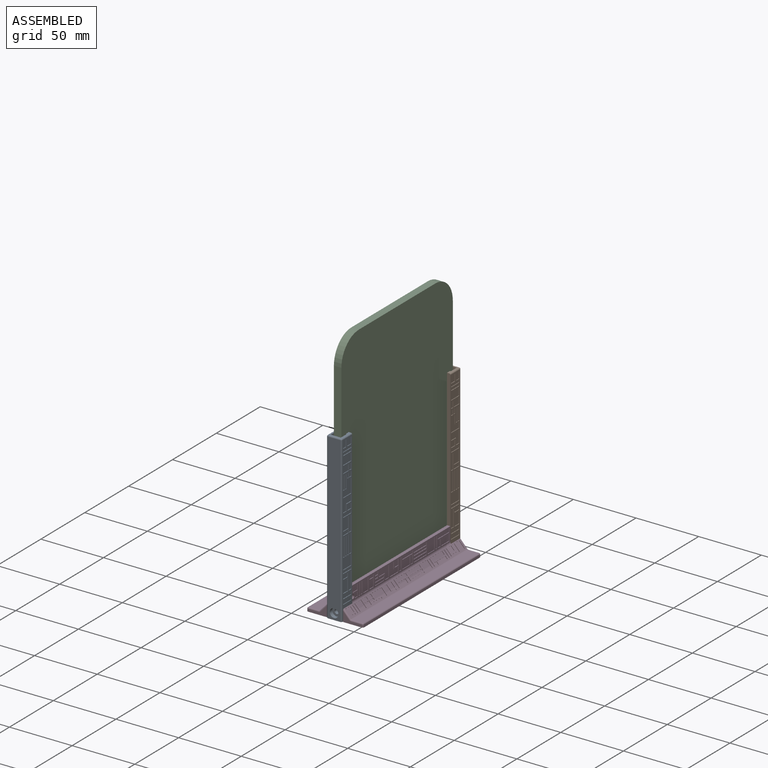
[diagram: assembled view]
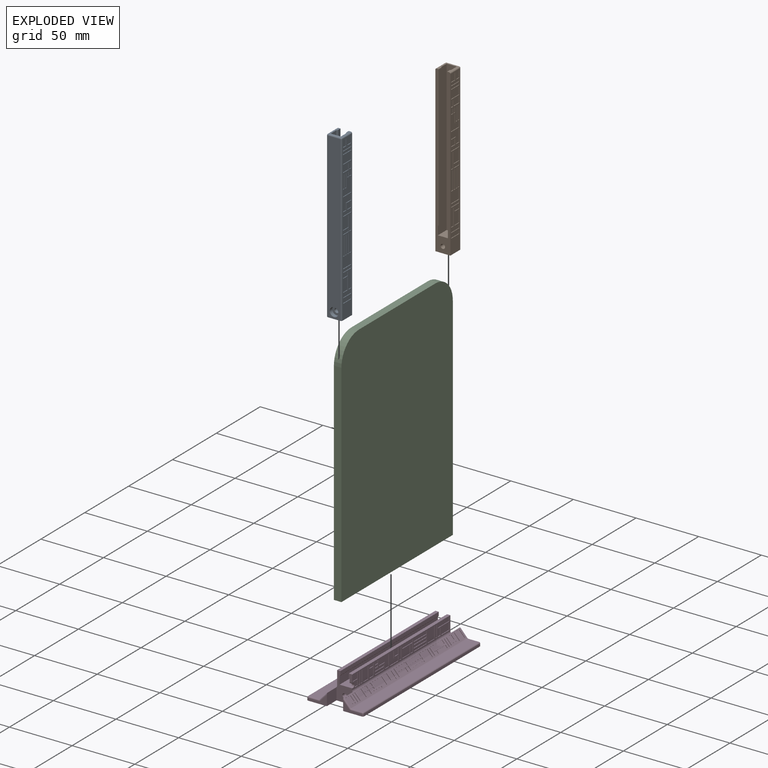
[diagram: exploded view]
GUIDED TOUR — MATED ASSEMBLY (Onshape document 5372cf0630e873745d245619, AutoMate assembly 5372cf0630e873745d245619_00c1e53bc919665ff2d2a503_a48deda3245ee287fb193565_default)

This assembly has 4 components, labeled P0..P3 below (a component is one placed occurrence of a part; the same part can appear more than once), held together by 7 mates. A mate is a constraint between two components; its type names the relative motion it leaves free:
  PLANAR — leaves sliding in the plane through the listed point (normal = the listed direction) and rotation about that normal free.
Axis/direction vectors are unit vectors and 'through' points are millimeter coordinates, both in the assembly's world frame.

MATES
  1. PLANAR "Planar 5": P0 <-> P3, direction (0.000, 1.000, 0.000) through (12.50, 0.00, 61.21) mm
  2. PLANAR "Planar 7": P3 <-> P1, direction (0.000, 0.000, -1.000) through (12.50, 56.00, 0.00) mm
  3. PLANAR "Planar 4": P0 <-> P3, direction (0.000, 0.000, -1.000) through (12.50, -5.98, 0.00) mm
  4. PLANAR "Planar 2": P3 <-> P2, direction (0.000, 0.000, 1.000) through (12.51, 55.88, 12.00) mm
  5. PLANAR "Planar 8": P1 <-> P3, direction (1.000, 0.000, 0.000) through (18.50, 117.49, 58.50) mm
  6. PLANAR "Planar 1": P3 <-> P2, direction (1.000, 0.000, 0.000) through (9.20, 56.00, 20.50) mm
  7. PLANAR "Planar 3": P0 <-> P2, direction (1.000, 0.000, 0.000) through (9.20, -1.50, 75.50) mm

ASSEMBLY ORDER
  1. P2 — the base component [order verified]
  2. P3 [order verified]
  3. P1 [order verified]
  4. P0 [order verified]
Order-tag legend:
  [order verified] — this step's position reverses a verified removal order: the component was checked to insert without passing through the ones already placed.

Of the 4 components, 3 carry the full construction recipe — the FeatureScript program that regenerates the part's solid from scratch; the rest are supplied as boundary geometry only.
Each toured component is shown spotlighted twice — in the assembled view, then in the exploded view, where a leader line traces a displaced component back to its assembled socket (saturated green if recipe-attached, orange if geometry-only; every other component desaturated gray) — followed by its recipe or geometry summary and the mates that hold it.
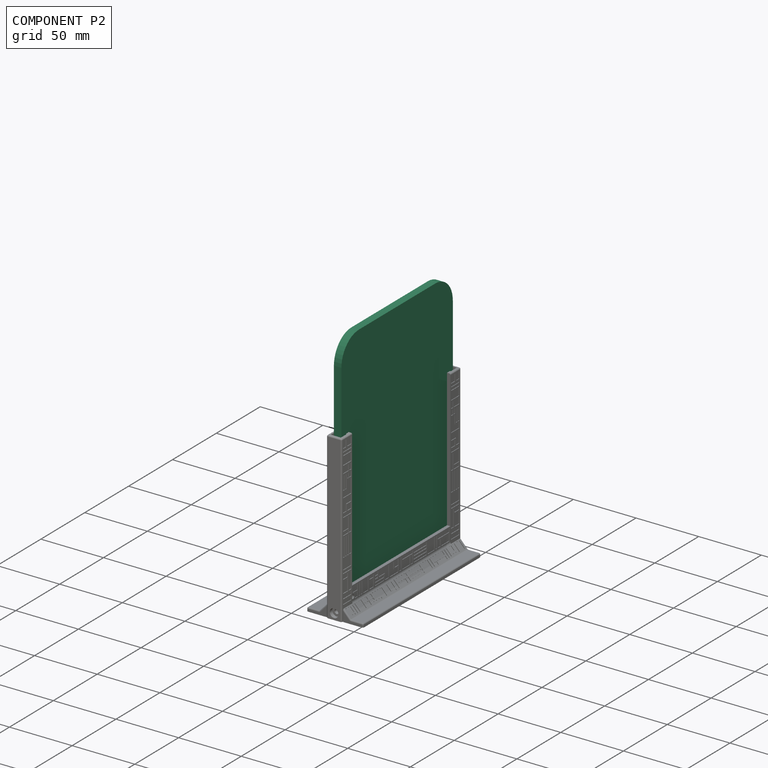
[diagram: component P2 — assembled]
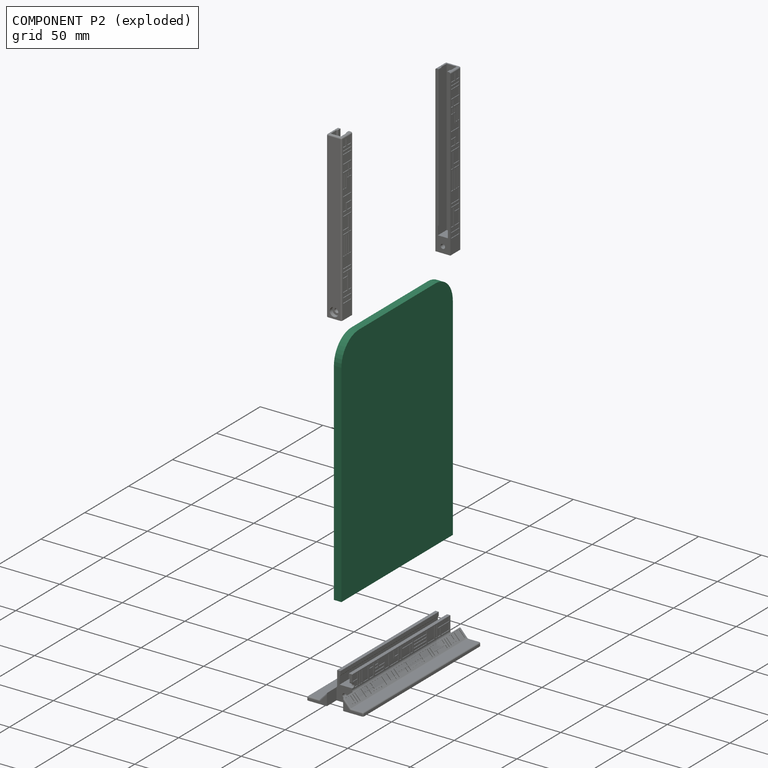
[diagram: component P2 — exploded]
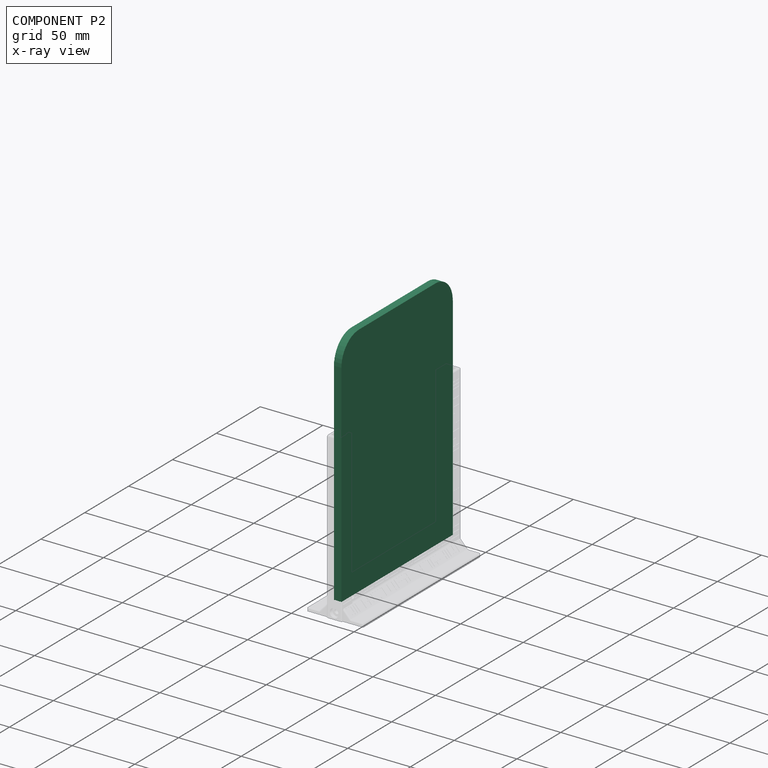
[diagram: component P2 — x-ray view]
COMPONENT P2 — recipe-attached (CADFS 00344481, mesh-verified: the recipe's output STEP matches this component's geometry to below the mesh-comparison resolution (tessellation chordal tolerance ~0.342 mm)).
Held by: PLANAR mate "Planar 2" to P3; PLANAR mate "Planar 1" to P3; PLANAR mate "Planar 3" to P0.
Construction recipe (FeatureScript — the CAD program that rebuilds this solid; sketch coordinates are in the units given by the * unit suffixes, e.g. mm):

FeatureScript 1549;
import(path : "onshape/std/geometry.fs", version : "1549.0");
import(path : "onshape/std/common.fs", version : "1549.0");
const mm = millimeter;
const VERTEX = EntityType.VERTEX;
const EDGE = EntityType.EDGE;
const FACE = EntityType.FACE;
const BODY = EntityType.BODY;
function v(x, y){return vector(x, y);}
function OD(order){return orderDisambiguation(order);}
function OSD(set){return originalSetDisambiguation(set);}
function TD(topology){return topologyDisambiguation(topology);}
function TDD(query){return trueDependencyDisambiguation(query);}
function sQuery(a, b, c) {return sketchEntityQuery(a, b, c);}

annotation { "Feature Type Name" : "Feature", "Feature Type Description" : "" }
export const myFeature = defineFeature(function(context is Context, id is Id, definition is map)
    precondition{}
    {
        {
            var Q0;
            Q0=qCreatedBy(makeId("Top.planeOp"),FACE);
            var sketch = newSketch(context, id + "F0", { "sketchPlane" : qUnion([Q0])});
            skLineSegment(sketch, "E0.bottom", {"start": v(0, 0) * mm, "end": v(127, 0) * mm});
            skLineSegment(sketch, "E0.top", {"start": v(20, 189) * mm, "end": v(107, 189) * mm});
            skLineSegment(sketch, "E0.left", {"start": v(0, 0) * mm, "end": v(0, 169) * mm});
            skLineSegment(sketch, "E0.right", {"start": v(127, 0) * mm, "end": v(127, 169) * mm});
            skPoint(sketch, "E1.visualSharp", {"position": v(0, 189) * mm});
            skArc(sketch, "E1.filletArc", {"start": v(20, 189) * mm, "mid": v(5.86, 183.14) * mm, "end": v(0, 169) * mm});
            skPoint(sketch, "E2.visualSharp", {"position": v(127, 189) * mm});
            skArc(sketch, "E2.filletArc", {"start": v(127, 169) * mm, "mid": v(121.14, 183.14) * mm, "end": v(107, 189) * mm});
            skSolve(sketch);
        }
        {
            var Q0;
            Q0 = qSketchRegion(id + "F0", true);
            extrude(context, id + "F1", {"entities" : qUnion([Q0]), "depth" : 6 * mm, "offsetDistance" : 25 * mm});
        }
    });
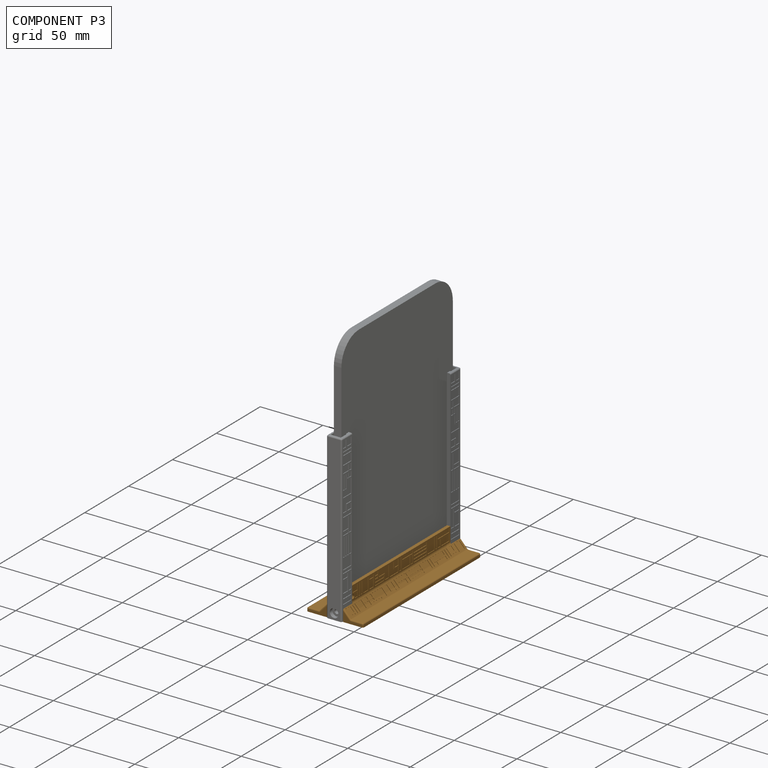
[diagram: component P3 — assembled]
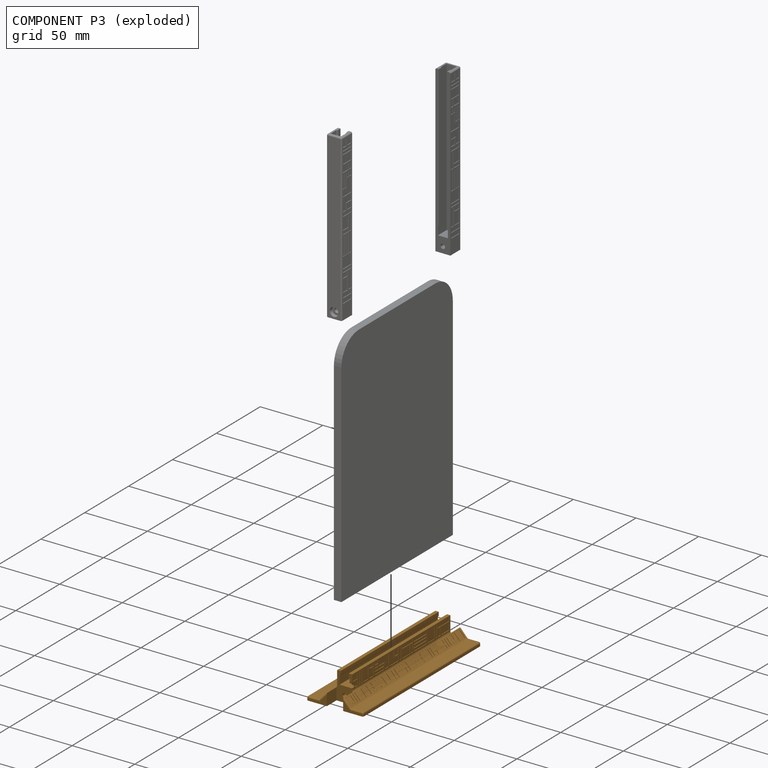
[diagram: component P3 — exploded]
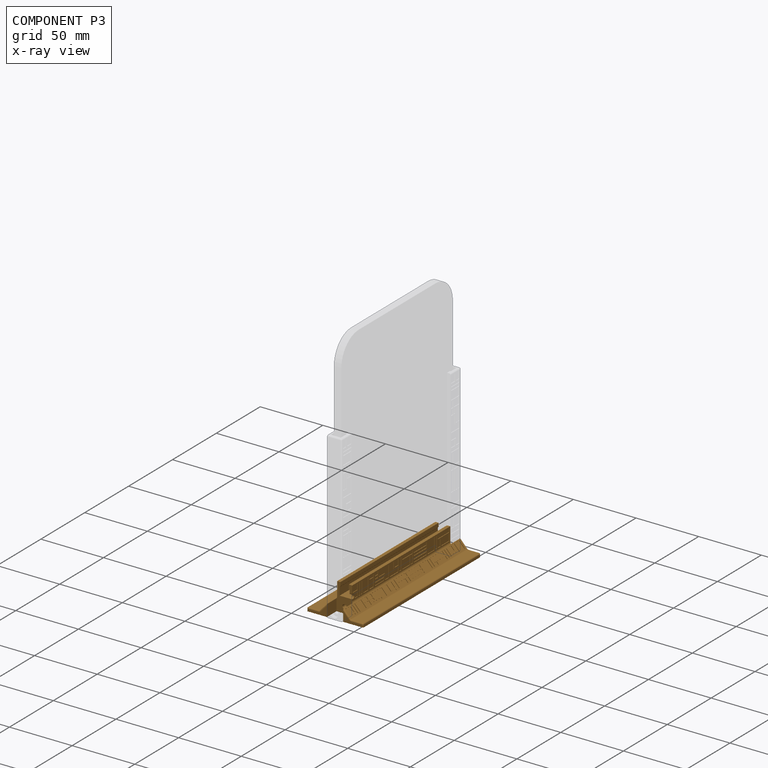
[diagram: component P3 — x-ray view]
COMPONENT P3 — geometry summary (no construction recipe available for this part):
  bounding box: 134.0 x 45.0 x 22.0 mm
  B-rep topology: 1 solid, 667 faces, 3238 edges
  volume: 37908 mm^3 (29% of its bounding box)
  symmetry: 2-fold rotationally symmetric about the y axis; mirror-symmetric across its x mid-plane, z mid-plane
Held by: PLANAR mate "Planar 5" to P0; PLANAR mate "Planar 7" to P1; PLANAR mate "Planar 4" to P0; PLANAR mate "Planar 2" to P2; PLANAR mate "Planar 8" to P1; PLANAR mate "Planar 1" to P2.
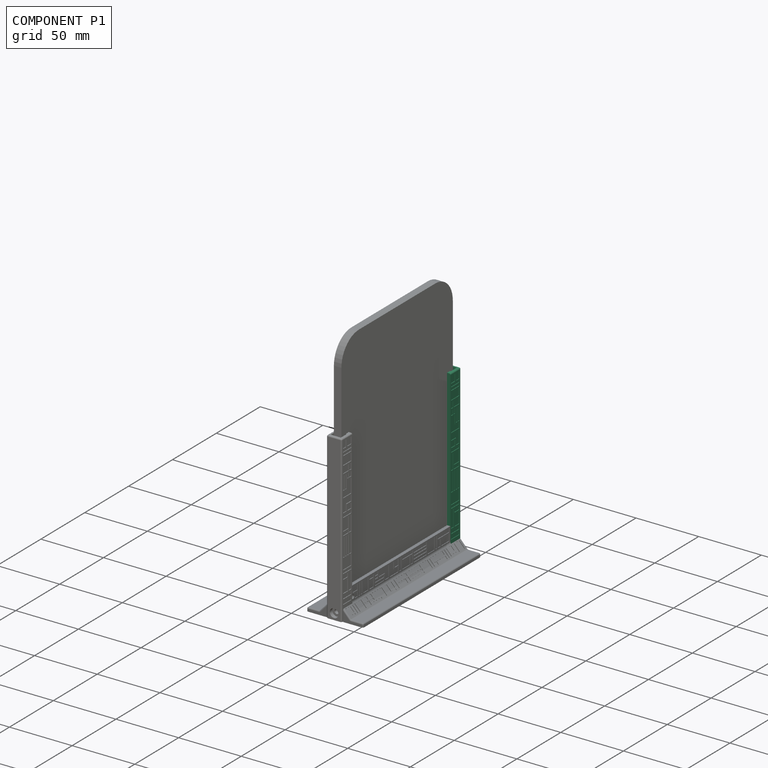
[diagram: component P1 — assembled]
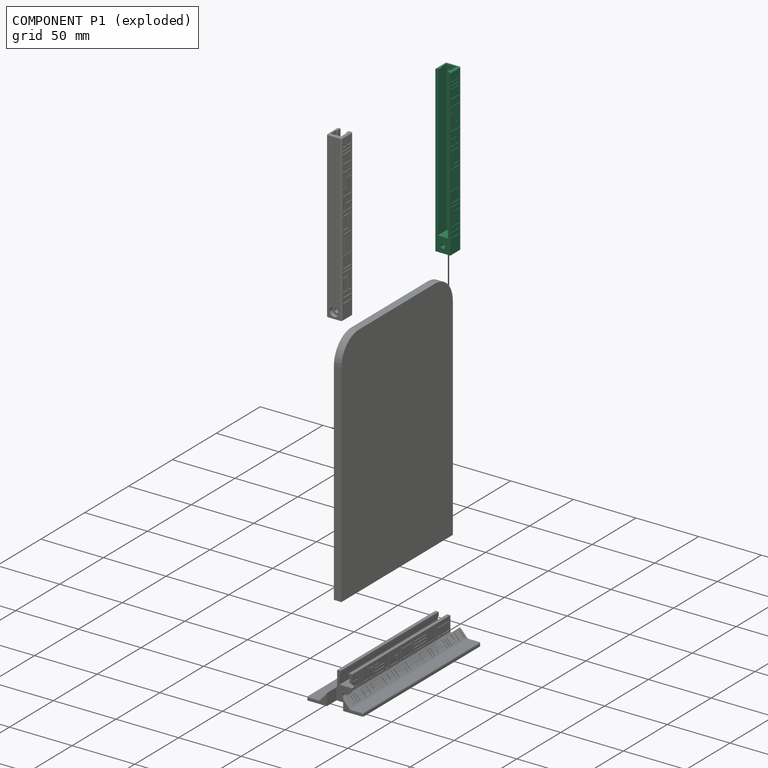
[diagram: component P1 — exploded]
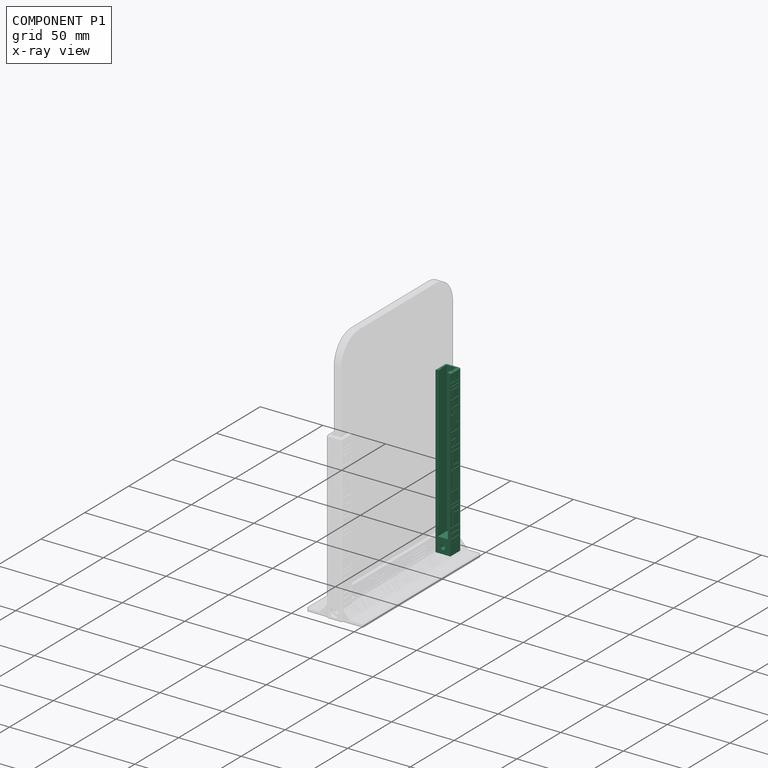
[diagram: component P1 — x-ray view]
COMPONENT P1 — same part as P0 (CADFS 00344480); its construction recipe is shown at P0.
Held by: PLANAR mate "Planar 7" to P3; PLANAR mate "Planar 8" to P3.
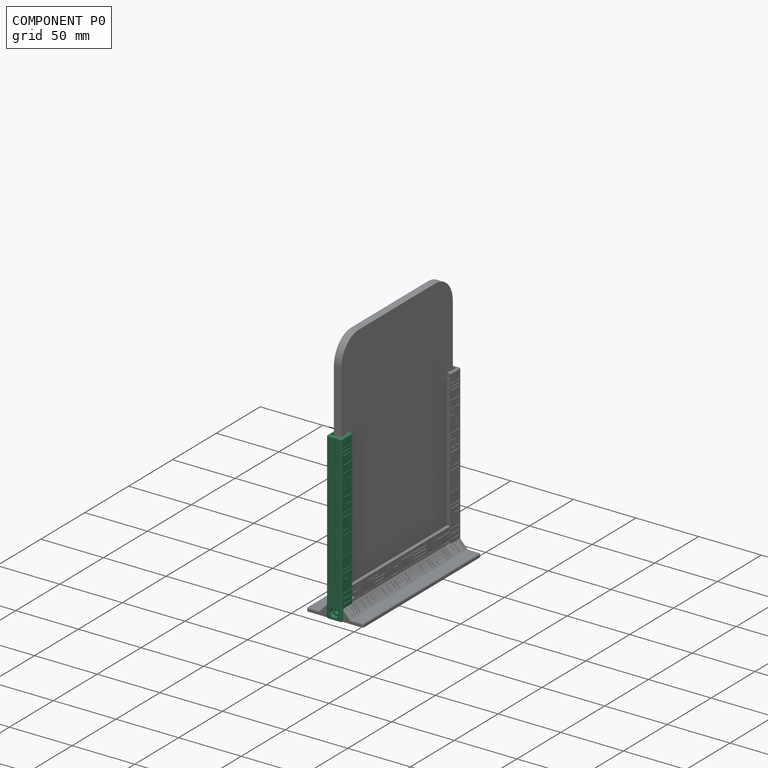
[diagram: component P0 — assembled]
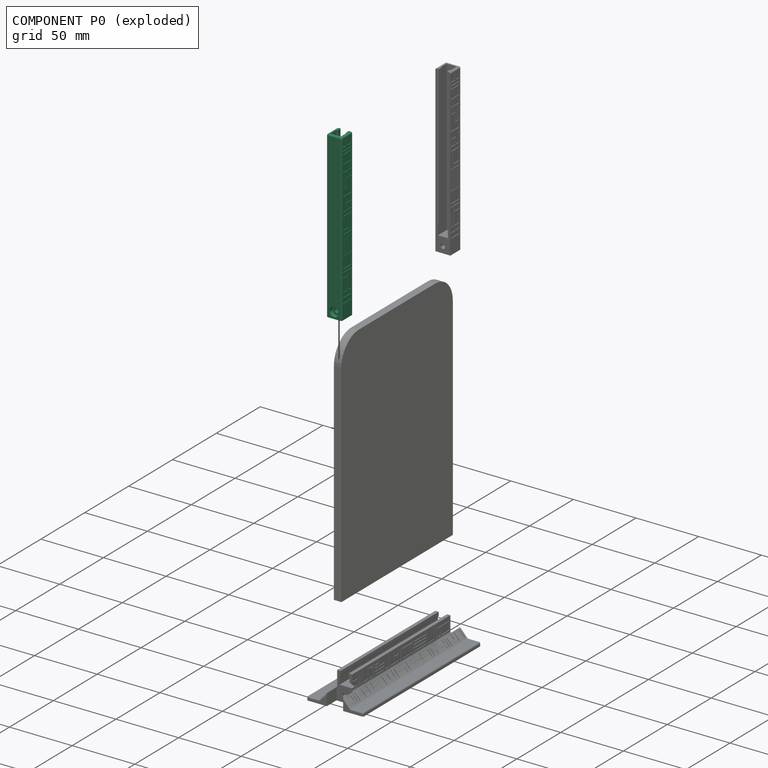
[diagram: component P0 — exploded]
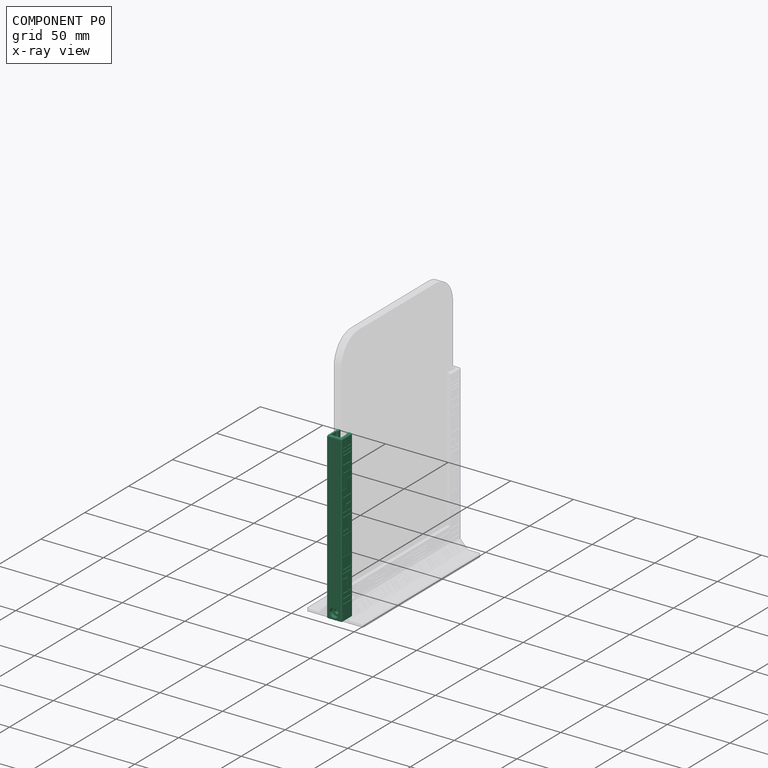
[diagram: component P0 — x-ray view]
COMPONENT P0 — recipe-attached (CADFS 00344480, mesh-verified: the recipe's output STEP matches this component's geometry to below the mesh-comparison resolution (tessellation chordal tolerance ~0.2 mm)).
Held by: PLANAR mate "Planar 5" to P3; PLANAR mate "Planar 4" to P3; PLANAR mate "Planar 3" to P2.
Construction recipe (FeatureScript — the CAD program that rebuilds this solid; sketch coordinates are in the units given by the * unit suffixes, e.g. mm):

FeatureScript 1549;
import(path : "onshape/std/geometry.fs", version : "1549.0");
import(path : "onshape/std/common.fs", version : "1549.0");
const mm = millimeter;
const VERTEX = EntityType.VERTEX;
const EDGE = EntityType.EDGE;
const FACE = EntityType.FACE;
const BODY = EntityType.BODY;
function v(x, y){return vector(x, y);}
function OD(order){return orderDisambiguation(order);}
function OSD(set){return originalSetDisambiguation(set);}
function TD(topology){return topologyDisambiguation(topology);}
function TDD(query){return trueDependencyDisambiguation(query);}
function sQuery(a, b, c) {return sketchEntityQuery(a, b, c);}

annotation { "Feature Type Name" : "Feature", "Feature Type Description" : "" }
export const myFeature = defineFeature(function(context is Context, id is Id, definition is map)
    precondition{}
    {
        {
            var Q0;
            Q0=qCreatedBy(makeId("Top.planeOp"),FACE);
            var sketch = newSketch(context, id + "F0", { "sketchPlane" : qUnion([Q0])});
            skLineSegment(sketch, "E0.bottom", {"start": v(0, 0) * mm, "end": v(132, 0) * mm});
            skLineSegment(sketch, "E0.top", {"start": v(0, 12) * mm, "end": v(132, 12) * mm});
            skLineSegment(sketch, "E0.left", {"start": v(0, 0) * mm, "end": v(0, 12) * mm});
            skLineSegment(sketch, "E0.right", {"start": v(132, 0) * mm, "end": v(132, 12) * mm});
            skSolve(sketch);
        }
        {
            var Q0;
            Q0 = qSketchRegion(id + "F0", true);
            extrude(context, id + "F1", {"entities" : qUnion([Q0]), "depth" : 12 * mm, "offsetDistance" : 25 * mm});
        }
        {
            var Q0;
            Q0=makeQuery(id+"F1.opExtrude","SWEPT_FACE",FACE,{"disambiguationData":[OSD([sQuery(id+"F0.wireOp",EDGE,"E0.right")])]});
            var sketch = newSketch(context, id + "F2", { "sketchPlane" : qUnion([Q0])});
            skLineSegment(sketch, "E1.MirrorCS", {"start": v(2.7, 12) * mm, "end": v(2.7, 9) * mm});
            skLineSegment(sketch, "E2.MirrorCS", {"start": v(2.7, 9) * mm, "end": v(2, 8.3) * mm});
            skLineSegment(sketch, "E3.MirrorCS", {"start": v(2, 8.3) * mm, "end": v(2, 2) * mm});
            skLineSegment(sketch, "E4.MirrorCS", {"start": v(2, 2) * mm, "end": v(6, 2) * mm});
            skLineSegment(sketch, "E5", {"start": v(6, 2) * mm, "end": v(6, 12.64) * mm, "construction": true});
            skLineSegment(sketch, "E6.MirrorCS", {"start": v(9.3, 12) * mm, "end": v(9.3, 9) * mm});
            skLineSegment(sketch, "E7.MirrorCS", {"start": v(9.3, 9) * mm, "end": v(10, 8.3) * mm});
            skLineSegment(sketch, "E8.MirrorCS", {"start": v(10, 8.3) * mm, "end": v(10, 2) * mm});
            skLineSegment(sketch, "E9.MirrorCS", {"start": v(10, 2) * mm, "end": v(6, 2) * mm});
            skSolve(sketch);
        }
        {
            var Q0;
            {var subQ0=sQuery(id+"F2.wireOp",EDGE,"E1.MirrorCS");Q0=makeQuery(id+"F2.imprint","IMPRINT",FACE,{"disambiguationData":[TD([[makeQuery(id+"F2.imprint","IMPRINT",EDGE,{"derivedFrom":subQ0}),1.0]])]});}
            extrude(context, id + "F3", {"entities" : qUnion([Q0]), "operationType" : NewBodyOperationType.REMOVE, "oppositeDirection" : true, "depth" : 120 * mm, "offsetDistance" : 25 * mm});
        }
        {
            var Q0;
            Q0=makeQuery(id+"F1.opExtrude","CAP_EDGE",EDGE,{"disambiguationData":[OSD([sQuery(id+"F0.wireOp",EDGE,"E0.top")])],"isStart":true});
            var Q1;
            Q1=makeQuery(id+"F1.opExtrude","CAP_EDGE",EDGE,{"disambiguationData":[OSD([sQuery(id+"F0.wireOp",EDGE,"E0.bottom")])],"isStart":true});
            fillet(context, id + "F4", {"entities" : qUnion([Q0, Q1]), "radius" : 1 * mm, "tangentPropagation" : true, "allowEdgeOverflow" : false});
        }
        {
            var Q0;
            Q0=makeQuery(id+"F1.opExtrude","SWEPT_EDGE",EDGE,{"disambiguationData":[OSD([sQuery(id+"F0.wireOp",EDGE,"E0.top"),sQuery(id+"F0.wireOp",EDGE,"E0.right")])]});
            fillet(context, id + "F5", {"entities" : qUnion([Q0]), "radius" : 1 * mm, "tangentPropagation" : true, "allowEdgeOverflow" : false});
        }
        {
            var Q0;
            Q0=makeQuery(id+"F1.opExtrude","CAP_FACE",FACE,{"disambiguationData":[OSD([sQuery(id+"F0.wireOp",EDGE,"E0.bottom"),sQuery(id+"F0.wireOp",EDGE,"E0.top"),sQuery(id+"F0.wireOp",EDGE,"E0.left"),sQuery(id+"F0.wireOp",EDGE,"E0.right")])],"isStart":true});
            var sketch = newSketch(context, id + "F6", { "sketchPlane" : qUnion([Q0])});
            skCircle(sketch, "E10", {"center": v(5, -6) * mm, "radius": 1.75 * mm});
            skPoint(sketch, "E10.centerSnap0", {"position": v(0, -6) * mm});
            skSolve(sketch);
        }
        {
            var Q0;
            Q0 = qSketchRegion(id + "F6", true);
            extrude(context, id + "F7", {"entities" : qUnion([Q0]), "operationType" : NewBodyOperationType.REMOVE, "oppositeDirection" : true, "depth" : 25 * mm, "offsetDistance" : 25 * mm});
        }
        {
            var Q0;
            Q0=makeQuery(id+"F1.opExtrude","CAP_FACE",FACE,{"disambiguationData":[OSD([sQuery(id+"F0.wireOp",EDGE,"E0.bottom"),sQuery(id+"F0.wireOp",EDGE,"E0.top"),sQuery(id+"F0.wireOp",EDGE,"E0.left"),sQuery(id+"F0.wireOp",EDGE,"E0.right")])],"isStart":true});
            var sketch = newSketch(context, id + "F8", { "sketchPlane" : qUnion([Q0])});
            skCircle(sketch, "E11", {"center": v(5, -6) * mm, "radius": 3.5 * mm});
            skSolve(sketch);
        }
        {
            var Q0;
            Q0 = qSketchRegion(id + "F8", true);
            extrude(context, id + "F9", {"entities" : qUnion([Q0]), "operationType" : NewBodyOperationType.REMOVE, "oppositeDirection" : true, "depth" : 3 * mm, "offsetDistance" : 25 * mm});
        }
        {
            var Q0;
            Q0=makeQuery(id+"F3.boolean.opBoolean","COPY",FACE,{"derivedFrom":makeQuery(id+"F3.opExtrude","SWEPT_FACE",FACE,{"disambiguationData":[OSD([sQuery(id+"F2.wireOp",EDGE,"E4.MirrorCS"),sQuery(id+"F2.wireOp",EDGE,"E9.MirrorCS")])]})});
            var sketch = newSketch(context, id + "F10", { "sketchPlane" : qUnion([Q0])});
            skLineSegment(sketch, "E12.bottom", {"start": v(12, 10) * mm, "end": v(19, 10) * mm});
            skLineSegment(sketch, "E12.top", {"start": v(12, 2) * mm, "end": v(19, 2) * mm});
            skLineSegment(sketch, "E12.left", {"start": v(12, 10) * mm, "end": v(12, 2) * mm});
            skLineSegment(sketch, "E12.right", {"start": v(19, 10) * mm, "end": v(19, 2) * mm});
            skSolve(sketch);
        }
        {
            var Q0;
            Q0 = qSketchRegion(id + "F10", true);
            extrude(context, id + "F11", {"entities" : qUnion([Q0]), "operationType" : NewBodyOperationType.REMOVE, "depth" : 25 * mm, "offsetDistance" : 25 * mm});
        }
        {
            var Q0;
            Q0=makeQuery(id+"F1.opExtrude","SWEPT_FACE",FACE,{"disambiguationData":[OSD([sQuery(id+"F0.wireOp",EDGE,"E0.top")])]});
            var sketch = newSketch(context, id + "F12", { "sketchPlane" : qUnion([Q0])});
            skLineSegment(sketch, "E13.bottom", {"start": v(-19.85, 1.79) * mm, "end": v(-19.85, 7.11) * mm});
            skLineSegment(sketch, "E13.top", {"start": v(-29.03, 1.79) * mm, "end": v(-29.03, 7.11) * mm});
            skLineSegment(sketch, "E13.left", {"start": v(-19.85, 1.79) * mm, "end": v(-29.03, 1.79) * mm});
            skLineSegment(sketch, "E13.right", {"start": v(-19.85, 7.11) * mm, "end": v(-29.03, 7.11) * mm});
            skLineSegment(sketch, "E14.bottom", {"start": v(-19.85, 8.17) * mm, "end": v(-19.85, 11.16) * mm});
            skLineSegment(sketch, "E14.top", {"start": v(-33.16, 8.17) * mm, "end": v(-33.16, 11.16) * mm});
            skLineSegment(sketch, "E14.left", {"start": v(-19.85, 8.17) * mm, "end": v(-33.16, 8.17) * mm});
            skLineSegment(sketch, "E14.right", {"start": v(-19.85, 11.16) * mm, "end": v(-33.16, 11.16) * mm});
            skPoint(sketch, "E15.firstSnap0", {"position": v(-33.16, 9.67) * mm});
            skLineSegment(sketch, "E15.bottom", {"start": v(-33.16, 1.79) * mm, "end": v(-33.16, 7.11) * mm});
            skLineSegment(sketch, "E15.top", {"start": v(-30.04, 1.79) * mm, "end": v(-30.04, 7.11) * mm});
            skLineSegment(sketch, "E15.left", {"start": v(-33.16, 1.79) * mm, "end": v(-30.04, 1.79) * mm});
            skLineSegment(sketch, "E15.right", {"start": v(-33.16, 7.11) * mm, "end": v(-30.04, 7.11) * mm});
            skLineSegment(sketch, "E16.bottom", {"start": v(-34.2, 1.79) * mm, "end": v(-34.2, 11.16) * mm});
            skLineSegment(sketch, "E16.top", {"start": v(-35.66, 1.79) * mm, "end": v(-35.66, 11.16) * mm});
            skLineSegment(sketch, "E16.left", {"start": v(-34.2, 1.79) * mm, "end": v(-35.66, 1.79) * mm});
            skLineSegment(sketch, "E16.right", {"start": v(-34.2, 11.16) * mm, "end": v(-35.66, 11.16) * mm});
            skLineSegment(sketch, "E17.bottom", {"start": v(-36.83, 1.79) * mm, "end": v(-36.83, 11.16) * mm});
            skLineSegment(sketch, "E17.top", {"start": v(-44.9, 1.79) * mm, "end": v(-44.9, 11.16) * mm});
            skLineSegment(sketch, "E17.left", {"start": v(-36.83, 1.79) * mm, "end": v(-44.9, 1.79) * mm});
            skLineSegment(sketch, "E17.right", {"start": v(-36.83, 11.16) * mm, "end": v(-44.9, 11.16) * mm});
            skLineSegment(sketch, "E18.bottom", {"start": v(-45.86, 1.79) * mm, "end": v(-45.86, 3.27) * mm});
            skLineSegment(sketch, "E18.top", {"start": v(-60.4, 1.79) * mm, "end": v(-60.4, 3.27) * mm});
            skLineSegment(sketch, "E18.left", {"start": v(-45.86, 1.79) * mm, "end": v(-60.4, 1.79) * mm});
            skLineSegment(sketch, "E18.right", {"start": v(-45.86, 3.27) * mm, "end": v(-60.4, 3.27) * mm});
            skLineSegment(sketch, "E19.bottom", {"start": v(-60.4, 4.1) * mm, "end": v(-60.4, 5.6) * mm});
            skLineSegment(sketch, "E19.top", {"start": v(-45.86, 4.1) * mm, "end": v(-45.86, 5.6) * mm});
            skLineSegment(sketch, "E19.left", {"start": v(-60.4, 4.1) * mm, "end": v(-45.86, 4.1) * mm});
            skLineSegment(sketch, "E19.right", {"start": v(-60.4, 5.6) * mm, "end": v(-45.86, 5.6) * mm});
            skLineSegment(sketch, "E20.bottom", {"start": v(-45.86, 6.54) * mm, "end": v(-45.86, 8.08) * mm});
            skLineSegment(sketch, "E20.top", {"start": v(-60.4, 6.54) * mm, "end": v(-60.4, 8.08) * mm});
            skLineSegment(sketch, "E20.left", {"start": v(-45.86, 6.54) * mm, "end": v(-60.4, 6.54) * mm});
            skLineSegment(sketch, "E20.right", {"start": v(-45.86, 8.08) * mm, "end": v(-60.4, 8.08) * mm});
            skLineSegment(sketch, "E21.bottom", {"start": v(-60.4, 8.79) * mm, "end": v(-60.4, 11.16) * mm});
            skLineSegment(sketch, "E21.top", {"start": v(-45.86, 8.79) * mm, "end": v(-45.86, 11.16) * mm});
            skLineSegment(sketch, "E21.left", {"start": v(-60.4, 8.79) * mm, "end": v(-45.86, 8.79) * mm});
            skLineSegment(sketch, "E21.right", {"start": v(-60.4, 11.16) * mm, "end": v(-45.86, 11.16) * mm});
            skLineSegment(sketch, "E22.bottom", {"start": v(-61.53, 1.79) * mm, "end": v(-61.53, 8.08) * mm});
            skLineSegment(sketch, "E22.top", {"start": v(-63.86, 1.79) * mm, "end": v(-63.86, 8.08) * mm});
            skLineSegment(sketch, "E22.left", {"start": v(-61.53, 1.79) * mm, "end": v(-63.86, 1.79) * mm});
            skLineSegment(sketch, "E22.right", {"start": v(-61.53, 8.08) * mm, "end": v(-63.86, 8.08) * mm});
            skLineSegment(sketch, "E23.bottom", {"start": v(-61.53, 8.79) * mm, "end": v(-61.53, 11.16) * mm});
            skLineSegment(sketch, "E23.top", {"start": v(-73.47, 8.79) * mm, "end": v(-73.47, 11.16) * mm});
            skLineSegment(sketch, "E23.left", {"start": v(-61.53, 8.79) * mm, "end": v(-73.47, 8.79) * mm});
            skLineSegment(sketch, "E23.right", {"start": v(-61.53, 11.16) * mm, "end": v(-73.47, 11.16) * mm});
            skLineSegment(sketch, "E24.bottom", {"start": v(-64.7, 1.79) * mm, "end": v(-64.7, 8.08) * mm});
            skLineSegment(sketch, "E24.top", {"start": v(-73.47, 1.79) * mm, "end": v(-73.47, 8.08) * mm});
            skLineSegment(sketch, "E24.left", {"start": v(-64.7, 1.79) * mm, "end": v(-73.47, 1.79) * mm});
            skLineSegment(sketch, "E24.right", {"start": v(-64.7, 8.08) * mm, "end": v(-73.47, 8.08) * mm});
            skLineSegment(sketch, "E25.bottom", {"start": v(-74.65, 11.16) * mm, "end": v(-74.65, 1.79) * mm});
            skLineSegment(sketch, "E25.top", {"start": v(-76.62, 11.16) * mm, "end": v(-76.62, 1.79) * mm});
            skLineSegment(sketch, "E25.left", {"start": v(-74.65, 11.16) * mm, "end": v(-76.62, 11.16) * mm});
            skLineSegment(sketch, "E25.right", {"start": v(-74.65, 1.79) * mm, "end": v(-76.62, 1.79) * mm});
            skLineSegment(sketch, "E26.bottom", {"start": v(-77.98, 11.16) * mm, "end": v(-77.98, 6.54) * mm});
            skLineSegment(sketch, "E26.top", {"start": v(-82.17, 11.16) * mm, "end": v(-82.17, 6.54) * mm});
            skLineSegment(sketch, "E26.left", {"start": v(-77.98, 11.16) * mm, "end": v(-82.17, 11.16) * mm});
            skLineSegment(sketch, "E26.right", {"start": v(-77.98, 6.54) * mm, "end": v(-82.17, 6.54) * mm});
            skLineSegment(sketch, "E27.bottom", {"start": v(-77.98, 5.6) * mm, "end": v(-77.98, 1.79) * mm});
            skLineSegment(sketch, "E27.top", {"start": v(-87.79, 5.6) * mm, "end": v(-87.79, 1.79) * mm});
            skLineSegment(sketch, "E27.left", {"start": v(-77.98, 5.6) * mm, "end": v(-87.79, 5.6) * mm});
            skLineSegment(sketch, "E27.right", {"start": v(-77.98, 1.79) * mm, "end": v(-87.79, 1.79) * mm});
            skLineSegment(sketch, "E28.bottom", {"start": v(-87.79, 5.6) * mm, "end": v(-87.79, 11.16) * mm});
            skLineSegment(sketch, "E28.top", {"start": v(-83.2, 5.6) * mm, "end": v(-83.2, 11.16) * mm});
            skLineSegment(sketch, "E28.left", {"start": v(-87.79, 5.6) * mm, "end": v(-83.2, 5.6) * mm});
            skLineSegment(sketch, "E28.right", {"start": v(-87.79, 11.16) * mm, "end": v(-83.2, 11.16) * mm});
            skLineSegment(sketch, "E29.bottom", {"start": v(-88.87, 1.79) * mm, "end": v(-88.87, 11.16) * mm});
            skLineSegment(sketch, "E29.top", {"start": v(-93.38, 1.79) * mm, "end": v(-93.38, 11.16) * mm});
            skLineSegment(sketch, "E29.left", {"start": v(-88.87, 1.79) * mm, "end": v(-93.38, 1.79) * mm});
            skLineSegment(sketch, "E29.right", {"start": v(-88.87, 11.16) * mm, "end": v(-93.38, 11.16) * mm});
            skLineSegment(sketch, "E30.bottom", {"start": v(-93.38, 11.16) * mm, "end": v(-93.38, 6.54) * mm});
            skLineSegment(sketch, "E30.top", {"start": v(-100.19, 11.16) * mm, "end": v(-100.19, 6.54) * mm});
            skLineSegment(sketch, "E30.left", {"start": v(-93.38, 11.16) * mm, "end": v(-100.19, 11.16) * mm});
            skLineSegment(sketch, "E30.right", {"start": v(-93.38, 6.54) * mm, "end": v(-100.19, 6.54) * mm});
            skLineSegment(sketch, "E31.bottom", {"start": v(-94.25, 1.79) * mm, "end": v(-94.25, 3.27) * mm});
            skLineSegment(sketch, "E31.top", {"start": v(-104.75, 1.79) * mm, "end": v(-104.75, 3.27) * mm});
            skLineSegment(sketch, "E31.left", {"start": v(-94.25, 1.79) * mm, "end": v(-104.75, 1.79) * mm});
            skLineSegment(sketch, "E31.right", {"start": v(-94.25, 3.27) * mm, "end": v(-104.75, 3.27) * mm});
            skLineSegment(sketch, "E32.bottom", {"start": v(-94.25, 4.1) * mm, "end": v(-94.25, 5.6) * mm});
            skLineSegment(sketch, "E32.top", {"start": v(-104.75, 4.1) * mm, "end": v(-104.75, 5.6) * mm});
            skLineSegment(sketch, "E32.left", {"start": v(-94.25, 4.1) * mm, "end": v(-104.75, 4.1) * mm});
            skLineSegment(sketch, "E32.right", {"start": v(-94.25, 5.6) * mm, "end": v(-104.75, 5.6) * mm});
            skLineSegment(sketch, "E33.bottom", {"start": v(-104.75, 6.54) * mm, "end": v(-104.75, 8.08) * mm});
            skLineSegment(sketch, "E33.top", {"start": v(-101.21, 6.54) * mm, "end": v(-101.21, 8.08) * mm});
            skLineSegment(sketch, "E33.left", {"start": v(-104.75, 6.54) * mm, "end": v(-101.21, 6.54) * mm});
            skLineSegment(sketch, "E33.right", {"start": v(-104.75, 8.08) * mm, "end": v(-101.21, 8.08) * mm});
            skLineSegment(sketch, "E34.bottom", {"start": v(-101.21, 8.79) * mm, "end": v(-101.21, 11.16) * mm});
            skLineSegment(sketch, "E34.top", {"start": v(-104.75, 8.79) * mm, "end": v(-104.75, 11.16) * mm});
            skLineSegment(sketch, "E34.left", {"start": v(-101.21, 8.79) * mm, "end": v(-104.75, 8.79) * mm});
            skLineSegment(sketch, "E34.right", {"start": v(-101.21, 11.16) * mm, "end": v(-104.75, 11.16) * mm});
            skLineSegment(sketch, "E35.bottom", {"start": v(-106.32, 1.79) * mm, "end": v(-106.32, 8.08) * mm});
            skLineSegment(sketch, "E35.top", {"start": v(-110.94, 1.79) * mm, "end": v(-110.94, 8.08) * mm});
            skLineSegment(sketch, "E35.left", {"start": v(-106.32, 1.79) * mm, "end": v(-110.94, 1.79) * mm});
            skLineSegment(sketch, "E35.right", {"start": v(-106.32, 8.08) * mm, "end": v(-110.94, 8.08) * mm});
            skLineSegment(sketch, "E36.bottom", {"start": v(-112.25, 1.79) * mm, "end": v(-112.25, 11.16) * mm});
            skLineSegment(sketch, "E36.top", {"start": v(-118.04, 1.79) * mm, "end": v(-118.04, 11.16) * mm});
            skLineSegment(sketch, "E36.left", {"start": v(-112.25, 1.79) * mm, "end": v(-118.04, 1.79) * mm});
            skLineSegment(sketch, "E36.right", {"start": v(-112.25, 11.16) * mm, "end": v(-118.04, 11.16) * mm});
            skLineSegment(sketch, "E37.bottom", {"start": v(-106.32, 8.79) * mm, "end": v(-106.32, 11.16) * mm});
            skLineSegment(sketch, "E37.top", {"start": v(-110.94, 8.79) * mm, "end": v(-110.94, 11.16) * mm});
            skLineSegment(sketch, "E37.left", {"start": v(-106.32, 8.79) * mm, "end": v(-110.94, 8.79) * mm});
            skLineSegment(sketch, "E37.right", {"start": v(-106.32, 11.16) * mm, "end": v(-110.94, 11.16) * mm});
            skLineSegment(sketch, "E38.bottom", {"start": v(-119.28, 1.79) * mm, "end": v(-119.28, 11.16) * mm});
            skLineSegment(sketch, "E38.top", {"start": v(-120.87, 1.79) * mm, "end": v(-120.87, 11.16) * mm});
            skLineSegment(sketch, "E38.left", {"start": v(-119.28, 1.79) * mm, "end": v(-120.87, 1.79) * mm});
            skLineSegment(sketch, "E38.right", {"start": v(-119.28, 11.16) * mm, "end": v(-120.87, 11.16) * mm});
            skLineSegment(sketch, "E39.bottom", {"start": v(-121.84, 1.79) * mm, "end": v(-121.84, 11.16) * mm});
            skLineSegment(sketch, "E39.top", {"start": v(-123.3, 1.79) * mm, "end": v(-123.3, 11.16) * mm});
            skLineSegment(sketch, "E39.left", {"start": v(-121.84, 1.79) * mm, "end": v(-123.3, 1.79) * mm});
            skLineSegment(sketch, "E39.right", {"start": v(-121.84, 11.16) * mm, "end": v(-123.3, 11.16) * mm});
            skLineSegment(sketch, "E40.bottom", {"start": v(-124.5, 6.54) * mm, "end": v(-124.5, 11.16) * mm});
            skLineSegment(sketch, "E40.top", {"start": v(-129.93, 6.54) * mm, "end": v(-129.93, 11.16) * mm});
            skLineSegment(sketch, "E40.left", {"start": v(-124.5, 6.54) * mm, "end": v(-129.93, 6.54) * mm});
            skLineSegment(sketch, "E40.right", {"start": v(-124.5, 11.16) * mm, "end": v(-129.93, 11.16) * mm});
            skLineSegment(sketch, "E41.bottom", {"start": v(-124.5, 5.33) * mm, "end": v(-124.5, 1.79) * mm});
            skLineSegment(sketch, "E41.top", {"start": v(-129.85, 5.33) * mm, "end": v(-129.85, 1.79) * mm});
            skLineSegment(sketch, "E41.left", {"start": v(-124.5, 5.33) * mm, "end": v(-129.85, 5.33) * mm});
            skLineSegment(sketch, "E41.right", {"start": v(-124.5, 1.79) * mm, "end": v(-129.85, 1.79) * mm});
            skLineSegment(sketch, "E42.bottom", {"start": v(-18.63, 11.16) * mm, "end": v(-15.96, 11.16) * mm});
            skLineSegment(sketch, "E42.top", {"start": v(-18.63, 1.79) * mm, "end": v(-15.96, 1.79) * mm});
            skLineSegment(sketch, "E42.left", {"start": v(-18.63, 11.16) * mm, "end": v(-18.63, 1.79) * mm});
            skLineSegment(sketch, "E42.right", {"start": v(-15.96, 11.16) * mm, "end": v(-15.96, 1.79) * mm});
            skLineSegment(sketch, "E43.bottom", {"start": v(-14.16, 1.79) * mm, "end": v(-11.96, 1.79) * mm});
            skLineSegment(sketch, "E43.top", {"start": v(-14.16, 11.16) * mm, "end": v(-11.96, 11.16) * mm});
            skLineSegment(sketch, "E43.left", {"start": v(-14.16, 1.79) * mm, "end": v(-14.16, 11.16) * mm});
            skLineSegment(sketch, "E43.right", {"start": v(-11.96, 1.79) * mm, "end": v(-11.96, 11.16) * mm});
            skSolve(sketch);
        }
        {
            var Q0;
            Q0 = qSketchRegion(id + "F12", true);
            extrude(context, id + "F13", {"entities" : qUnion([Q0]), "operationType" : NewBodyOperationType.REMOVE, "oppositeDirection" : true, "depth" : 0.5 * mm, "offsetDistance" : 25 * mm});
        }
        {
            var Q0;
            Q0=makeQuery(id+"F1.opExtrude","SWEPT_FACE",FACE,{"disambiguationData":[OSD([sQuery(id+"F0.wireOp",EDGE,"E0.bottom")])]});
            var sketch = newSketch(context, id + "F14", { "sketchPlane" : qUnion([Q0])});
            skLineSegment(sketch, "E44.0.0", {"start": v(11.96, 11.16) * mm, "end": v(14.16, 11.16) * mm});
            skLineSegment(sketch, "E44.0.1", {"start": v(14.16, 11.16) * mm, "end": v(14.16, 1.79) * mm});
            skLineSegment(sketch, "E44.0.2", {"start": v(14.16, 1.79) * mm, "end": v(11.96, 1.79) * mm});
            skLineSegment(sketch, "E44.0.3", {"start": v(11.96, 1.79) * mm, "end": v(11.96, 11.16) * mm});
            skLineSegment(sketch, "E44.1.0", {"start": v(18.63, 11.16) * mm, "end": v(18.63, 1.79) * mm});
            skLineSegment(sketch, "E44.1.1", {"start": v(18.63, 1.79) * mm, "end": v(15.96, 1.79) * mm});
            skLineSegment(sketch, "E44.1.2", {"start": v(15.96, 1.79) * mm, "end": v(15.96, 11.16) * mm});
            skLineSegment(sketch, "E44.1.3", {"start": v(15.96, 11.16) * mm, "end": v(18.63, 11.16) * mm});
            skLineSegment(sketch, "E44.2.0", {"start": v(33.16, 11.16) * mm, "end": v(33.16, 8.17) * mm});
            skLineSegment(sketch, "E44.2.1", {"start": v(33.16, 8.17) * mm, "end": v(19.85, 8.17) * mm});
            skLineSegment(sketch, "E44.2.2", {"start": v(19.85, 8.17) * mm, "end": v(19.85, 11.16) * mm});
            skLineSegment(sketch, "E44.2.3", {"start": v(19.85, 11.16) * mm, "end": v(33.16, 11.16) * mm});
            skLineSegment(sketch, "E44.3.0", {"start": v(29.03, 7.11) * mm, "end": v(29.03, 1.79) * mm});
            skLineSegment(sketch, "E44.3.1", {"start": v(29.03, 1.79) * mm, "end": v(19.85, 1.79) * mm});
            skLineSegment(sketch, "E44.3.2", {"start": v(19.85, 1.79) * mm, "end": v(19.85, 7.11) * mm});
            skLineSegment(sketch, "E44.3.3", {"start": v(19.85, 7.11) * mm, "end": v(29.03, 7.11) * mm});
            skLineSegment(sketch, "E44.4.0", {"start": v(33.16, 1.79) * mm, "end": v(30.04, 1.79) * mm});
            skLineSegment(sketch, "E44.4.1", {"start": v(30.04, 1.79) * mm, "end": v(30.04, 7.11) * mm});
            skLineSegment(sketch, "E44.4.2", {"start": v(30.04, 7.11) * mm, "end": v(33.16, 7.11) * mm});
            skLineSegment(sketch, "E44.4.3", {"start": v(33.16, 7.11) * mm, "end": v(33.16, 1.79) * mm});
            skLineSegment(sketch, "E44.5.0", {"start": v(35.66, 11.16) * mm, "end": v(35.66, 1.79) * mm});
            skLineSegment(sketch, "E44.5.1", {"start": v(35.66, 1.79) * mm, "end": v(34.2, 1.79) * mm});
            skLineSegment(sketch, "E44.5.2", {"start": v(34.2, 1.79) * mm, "end": v(34.2, 11.16) * mm});
            skLineSegment(sketch, "E44.5.3", {"start": v(34.2, 11.16) * mm, "end": v(35.66, 11.16) * mm});
            skLineSegment(sketch, "E44.6.0", {"start": v(44.9, 11.16) * mm, "end": v(44.9, 1.79) * mm});
            skLineSegment(sketch, "E44.6.1", {"start": v(44.9, 1.79) * mm, "end": v(36.83, 1.79) * mm});
            skLineSegment(sketch, "E44.6.2", {"start": v(36.83, 1.79) * mm, "end": v(36.83, 11.16) * mm});
            skLineSegment(sketch, "E44.6.3", {"start": v(36.83, 11.16) * mm, "end": v(44.9, 11.16) * mm});
            skLineSegment(sketch, "E44.7.0", {"start": v(60.4, 8.79) * mm, "end": v(45.86, 8.79) * mm});
            skLineSegment(sketch, "E44.7.1", {"start": v(45.86, 8.79) * mm, "end": v(45.86, 11.16) * mm});
            skLineSegment(sketch, "E44.7.2", {"start": v(45.86, 11.16) * mm, "end": v(60.4, 11.16) * mm});
            skLineSegment(sketch, "E44.7.3", {"start": v(60.4, 11.16) * mm, "end": v(60.4, 8.79) * mm});
            skLineSegment(sketch, "E44.8.0", {"start": v(60.4, 8.08) * mm, "end": v(60.4, 6.54) * mm});
            skLineSegment(sketch, "E44.8.1", {"start": v(60.4, 6.54) * mm, "end": v(45.86, 6.54) * mm});
            skLineSegment(sketch, "E44.8.2", {"start": v(45.86, 6.54) * mm, "end": v(45.86, 8.08) * mm});
            skLineSegment(sketch, "E44.8.3", {"start": v(45.86, 8.08) * mm, "end": v(60.4, 8.08) * mm});
            skLineSegment(sketch, "E44.9.0", {"start": v(60.4, 4.1) * mm, "end": v(45.86, 4.1) * mm});
            skLineSegment(sketch, "E44.9.1", {"start": v(45.86, 4.1) * mm, "end": v(45.86, 5.6) * mm});
            skLineSegment(sketch, "E44.9.2", {"start": v(45.86, 5.6) * mm, "end": v(60.4, 5.6) * mm});
            skLineSegment(sketch, "E44.9.3", {"start": v(60.4, 5.6) * mm, "end": v(60.4, 4.1) * mm});
            skLineSegment(sketch, "E44.10.0", {"start": v(60.4, 3.27) * mm, "end": v(60.4, 1.79) * mm});
            skLineSegment(sketch, "E44.10.1", {"start": v(60.4, 1.79) * mm, "end": v(45.86, 1.79) * mm});
            skLineSegment(sketch, "E44.10.2", {"start": v(45.86, 1.79) * mm, "end": v(45.86, 3.27) * mm});
            skLineSegment(sketch, "E44.10.3", {"start": v(45.86, 3.27) * mm, "end": v(60.4, 3.27) * mm});
            skLineSegment(sketch, "E44.11.0", {"start": v(63.86, 8.08) * mm, "end": v(63.86, 1.79) * mm});
            skLineSegment(sketch, "E44.11.1", {"start": v(63.86, 1.79) * mm, "end": v(61.53, 1.79) * mm});
            skLineSegment(sketch, "E44.11.2", {"start": v(61.53, 1.79) * mm, "end": v(61.53, 8.08) * mm});
            skLineSegment(sketch, "E44.11.3", {"start": v(61.53, 8.08) * mm, "end": v(63.86, 8.08) * mm});
            skLineSegment(sketch, "E44.12.0", {"start": v(73.47, 11.16) * mm, "end": v(73.47, 8.79) * mm});
            skLineSegment(sketch, "E44.12.1", {"start": v(73.47, 8.79) * mm, "end": v(61.53, 8.79) * mm});
            skLineSegment(sketch, "E44.12.2", {"start": v(61.53, 8.79) * mm, "end": v(61.53, 11.16) * mm});
            skLineSegment(sketch, "E44.12.3", {"start": v(61.53, 11.16) * mm, "end": v(73.47, 11.16) * mm});
            skLineSegment(sketch, "E44.13.0", {"start": v(73.47, 8.08) * mm, "end": v(73.47, 1.79) * mm});
            skLineSegment(sketch, "E44.13.1", {"start": v(73.47, 1.79) * mm, "end": v(64.7, 1.79) * mm});
            skLineSegment(sketch, "E44.13.2", {"start": v(64.7, 1.79) * mm, "end": v(64.7, 8.08) * mm});
            skLineSegment(sketch, "E44.13.3", {"start": v(64.7, 8.08) * mm, "end": v(73.47, 8.08) * mm});
            skLineSegment(sketch, "E44.14.0", {"start": v(74.65, 11.16) * mm, "end": v(76.62, 11.16) * mm});
            skLineSegment(sketch, "E44.14.1", {"start": v(76.62, 11.16) * mm, "end": v(76.62, 1.79) * mm});
            skLineSegment(sketch, "E44.14.2", {"start": v(76.62, 1.79) * mm, "end": v(74.65, 1.79) * mm});
            skLineSegment(sketch, "E44.14.3", {"start": v(74.65, 1.79) * mm, "end": v(74.65, 11.16) * mm});
            skLineSegment(sketch, "E44.15.0", {"start": v(77.98, 11.16) * mm, "end": v(82.17, 11.16) * mm});
            skLineSegment(sketch, "E44.15.1", {"start": v(82.17, 11.16) * mm, "end": v(82.17, 6.54) * mm});
            skLineSegment(sketch, "E44.15.2", {"start": v(82.17, 6.54) * mm, "end": v(77.98, 6.54) * mm});
            skLineSegment(sketch, "E44.15.3", {"start": v(77.98, 6.54) * mm, "end": v(77.98, 11.16) * mm});
            skLineSegment(sketch, "E44.16.0", {"start": v(77.98, 5.6) * mm, "end": v(83.2, 5.6) * mm});
            skLineSegment(sketch, "E44.16.1", {"start": v(83.2, 5.6) * mm, "end": v(83.2, 11.16) * mm});
            skLineSegment(sketch, "E44.16.2", {"start": v(83.2, 11.16) * mm, "end": v(87.79, 11.16) * mm});
            skLineSegment(sketch, "E44.16.3", {"start": v(87.79, 11.16) * mm, "end": v(87.79, 1.79) * mm});
            skLineSegment(sketch, "E44.16.4", {"start": v(87.79, 1.79) * mm, "end": v(77.98, 1.79) * mm});
            skLineSegment(sketch, "E44.16.5", {"start": v(77.98, 1.79) * mm, "end": v(77.98, 5.6) * mm});
            skLineSegment(sketch, "E44.17.0", {"start": v(93.38, 6.54) * mm, "end": v(93.38, 1.79) * mm});
            skLineSegment(sketch, "E44.17.1", {"start": v(93.38, 1.79) * mm, "end": v(88.87, 1.79) * mm});
            skLineSegment(sketch, "E44.17.2", {"start": v(88.87, 1.79) * mm, "end": v(88.87, 11.16) * mm});
            skLineSegment(sketch, "E44.17.3", {"start": v(88.87, 11.16) * mm, "end": v(100.19, 11.16) * mm});
            skLineSegment(sketch, "E44.17.4", {"start": v(100.19, 11.16) * mm, "end": v(100.19, 6.54) * mm});
            skLineSegment(sketch, "E44.17.5", {"start": v(100.19, 6.54) * mm, "end": v(93.38, 6.54) * mm});
            skLineSegment(sketch, "E44.18.0", {"start": v(104.75, 11.16) * mm, "end": v(104.75, 8.79) * mm});
            skLineSegment(sketch, "E44.18.1", {"start": v(104.75, 8.79) * mm, "end": v(101.21, 8.79) * mm});
            skLineSegment(sketch, "E44.18.2", {"start": v(101.21, 8.79) * mm, "end": v(101.21, 11.16) * mm});
            skLineSegment(sketch, "E44.18.3", {"start": v(101.21, 11.16) * mm, "end": v(104.75, 11.16) * mm});
            skLineSegment(sketch, "E44.19.0", {"start": v(104.75, 6.54) * mm, "end": v(101.21, 6.54) * mm});
            skLineSegment(sketch, "E44.19.1", {"start": v(101.21, 6.54) * mm, "end": v(101.21, 8.08) * mm});
            skLineSegment(sketch, "E44.19.2", {"start": v(101.21, 8.08) * mm, "end": v(104.75, 8.08) * mm});
            skLineSegment(sketch, "E44.19.3", {"start": v(104.75, 8.08) * mm, "end": v(104.75, 6.54) * mm});
            skLineSegment(sketch, "E44.20.0", {"start": v(104.75, 5.6) * mm, "end": v(104.75, 4.1) * mm});
            skLineSegment(sketch, "E44.20.1", {"start": v(104.75, 4.1) * mm, "end": v(94.25, 4.1) * mm});
            skLineSegment(sketch, "E44.20.2", {"start": v(94.25, 4.1) * mm, "end": v(94.25, 5.6) * mm});
            skLineSegment(sketch, "E44.20.3", {"start": v(94.25, 5.6) * mm, "end": v(104.75, 5.6) * mm});
            skLineSegment(sketch, "E44.21.0", {"start": v(104.75, 3.27) * mm, "end": v(104.75, 1.79) * mm});
            skLineSegment(sketch, "E44.21.1", {"start": v(104.75, 1.79) * mm, "end": v(94.25, 1.79) * mm});
            skLineSegment(sketch, "E44.21.2", {"start": v(94.25, 1.79) * mm, "end": v(94.25, 3.27) * mm});
            skLineSegment(sketch, "E44.21.3", {"start": v(94.25, 3.27) * mm, "end": v(104.75, 3.27) * mm});
            skLineSegment(sketch, "E44.22.0", {"start": v(110.94, 8.08) * mm, "end": v(110.94, 1.79) * mm});
            skLineSegment(sketch, "E44.22.1", {"start": v(110.94, 1.79) * mm, "end": v(106.32, 1.79) * mm});
            skLineSegment(sketch, "E44.22.2", {"start": v(106.32, 1.79) * mm, "end": v(106.32, 8.08) * mm});
            skLineSegment(sketch, "E44.22.3", {"start": v(106.32, 8.08) * mm, "end": v(110.94, 8.08) * mm});
            skLineSegment(sketch, "E44.23.0", {"start": v(110.94, 11.16) * mm, "end": v(110.94, 8.79) * mm});
            skLineSegment(sketch, "E44.23.1", {"start": v(110.94, 8.79) * mm, "end": v(106.32, 8.79) * mm});
            skLineSegment(sketch, "E44.23.2", {"start": v(106.32, 8.79) * mm, "end": v(106.32, 11.16) * mm});
            skLineSegment(sketch, "E44.23.3", {"start": v(106.32, 11.16) * mm, "end": v(110.94, 11.16) * mm});
            skLineSegment(sketch, "E44.24.0", {"start": v(118.04, 11.16) * mm, "end": v(118.04, 1.79) * mm});
            skLineSegment(sketch, "E44.24.1", {"start": v(118.04, 1.79) * mm, "end": v(112.25, 1.79) * mm});
            skLineSegment(sketch, "E44.24.2", {"start": v(112.25, 1.79) * mm, "end": v(112.25, 11.16) * mm});
            skLineSegment(sketch, "E44.24.3", {"start": v(112.25, 11.16) * mm, "end": v(118.04, 11.16) * mm});
            skLineSegment(sketch, "E44.25.0", {"start": v(120.87, 11.16) * mm, "end": v(120.87, 1.79) * mm});
            skLineSegment(sketch, "E44.25.1", {"start": v(120.87, 1.79) * mm, "end": v(119.28, 1.79) * mm});
            skLineSegment(sketch, "E44.25.2", {"start": v(119.28, 1.79) * mm, "end": v(119.28, 11.16) * mm});
            skLineSegment(sketch, "E44.25.3", {"start": v(119.28, 11.16) * mm, "end": v(120.87, 11.16) * mm});
            skLineSegment(sketch, "E44.26.0", {"start": v(123.3, 11.16) * mm, "end": v(123.3, 1.79) * mm});
            skLineSegment(sketch, "E44.26.1", {"start": v(123.3, 1.79) * mm, "end": v(121.84, 1.79) * mm});
            skLineSegment(sketch, "E44.26.2", {"start": v(121.84, 1.79) * mm, "end": v(121.84, 11.16) * mm});
            skLineSegment(sketch, "E44.26.3", {"start": v(121.84, 11.16) * mm, "end": v(123.3, 11.16) * mm});
            skLineSegment(sketch, "E44.27.0", {"start": v(129.93, 11.16) * mm, "end": v(129.93, 6.54) * mm});
            skLineSegment(sketch, "E44.27.1", {"start": v(129.93, 6.54) * mm, "end": v(124.5, 6.54) * mm});
            skLineSegment(sketch, "E44.27.2", {"start": v(124.5, 6.54) * mm, "end": v(124.5, 11.16) * mm});
            skLineSegment(sketch, "E44.27.3", {"start": v(124.5, 11.16) * mm, "end": v(129.93, 11.16) * mm});
            skLineSegment(sketch, "E44.28.0", {"start": v(124.5, 5.33) * mm, "end": v(129.85, 5.33) * mm});
            skLineSegment(sketch, "E44.28.1", {"start": v(129.85, 5.33) * mm, "end": v(129.85, 1.79) * mm});
            skLineSegment(sketch, "E44.28.2", {"start": v(129.85, 1.79) * mm, "end": v(124.5, 1.79) * mm});
            skLineSegment(sketch, "E44.28.3", {"start": v(124.5, 1.79) * mm, "end": v(124.5, 5.33) * mm});
            skSolve(sketch);
        }
        {
            var Q0;
            Q0 = qSketchRegion(id + "F14", true);
            extrude(context, id + "F15", {"entities" : qUnion([Q0]), "operationType" : NewBodyOperationType.REMOVE, "oppositeDirection" : true, "depth" : 0.5 * mm, "offsetDistance" : 25 * mm});
        }
    });
PROVENANCE & LICENSES
Assembly (occurrences, transforms, mates, per-part STEP geometry): AutoMate dataset, Zenodo record 7776208, CC0.
Construction recipes: CADFS (HuggingFace VladPyatov/CADFS, CC-BY-4.0, layered over the ABC dataset), FeatureScript reconstruction programs keyed by ABC model id.
Join: ABC meta listings map ABC model id -> Onshape documentId; within a shared document, parts are matched by geometric signature (bounding-box dims + volume at 0.1% relative tolerance, exact B-rep face/solid counts).
Verification: 3 of this assembly's 4 components carry a recipe attachment, and every attachment is mesh-verified: the CADFS STEP and the AutoMate member STEP were compared as meshes in their shared local frame (symmetric sampled-point-to-mesh distance); worst across the 3 attachments: below the mesh-comparison resolution (tessellation chordal tolerance ~0.342 mm) on a 228 mm part.
Renders: orthographic iso camera (az 35 / el 25); the floor grid conveys scale (grid pitch printed in each image; no ruler). In the exploded view each component is displaced by its stored offset vector: the offsets alone carry the explosion direction (mate normal/axis signs are not orientation cues and do not encode it), and separation distances are assigned per mate-chain, not proportionally to assembly-order depth.
